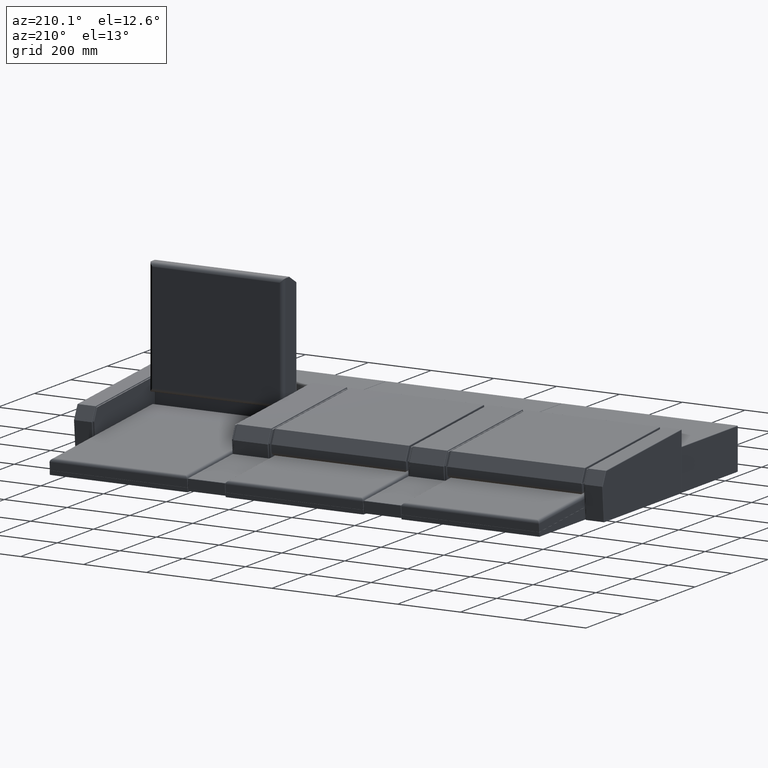
[diagram: clean part render]
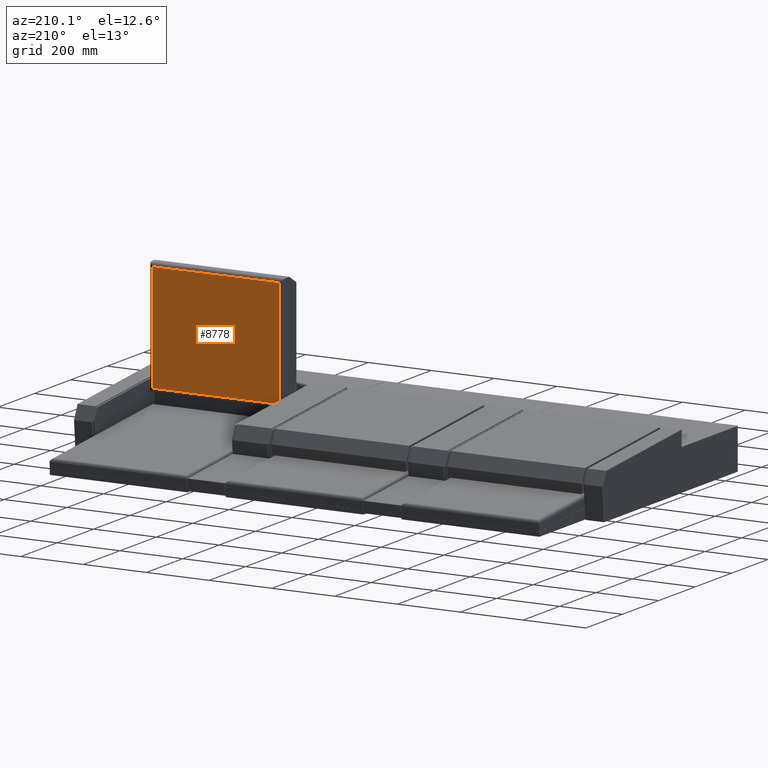
[diagram: same view with one face highlighted and labeled with its STEP entity id]
A machine part, auxiliary view. The second image highlights one B-rep face of the part: STEP entity #8778.
In plain terms, the highlighted planar face has unit normal (0, -1, 0).
Its self-contained STEP definition (entity closure, byte-faithful):
#1013 = EDGE_LOOP ( 'NONE', ( #1346, #1345, #1344, #1343 ) ) ;
#1343 = ORIENTED_EDGE ( 'NONE', *, *, #6661, .T. ) ;
#1344 = ORIENTED_EDGE ( 'NONE', *, *, #6662, .T. ) ;
#1345 = ORIENTED_EDGE ( 'NONE', *, *, #6663, .T. ) ;
#1346 = ORIENTED_EDGE ( 'NONE', *, *, #6664, .T. ) ;
#4143 = PLANE ( 'NONE',  #4567 ) ;
#4144 = CARTESIAN_POINT ( 'NONE',  ( 214.5000000000000000, 50.99999999999996400, 348.0000000000000000 ) ) ;
#4145 = DIRECTION ( 'NONE',  ( 0.0000000000000000000, -1.000000000000000000, 0.0000000000000000000 ) ) ;
#4146 = DIRECTION ( 'NONE',  ( 0.0000000000000000000, -0.0000000000000000000, -1.000000000000000000 ) ) ;
#4567 = AXIS2_PLACEMENT_3D ( 'NONE', #4144, #4145, #4146 ) ;
#5936 = FACE_OUTER_BOUND ( 'NONE', #1013, .T. ) ;
#6661 = EDGE_CURVE ( 'NONE', #9783, #9748, #10535, .T. ) ;
#6662 = EDGE_CURVE ( 'NONE', #9935, #9783, #10534, .T. ) ;
#6663 = EDGE_CURVE ( 'NONE', #9759, #9935, #10539, .T. ) ;
#6664 = EDGE_CURVE ( 'NONE', #9748, #9759, #10541, .T. ) ;
#7968 = CARTESIAN_POINT ( 'NONE',  ( -202.4999999999999700, 50.99999999999996400, 335.9999999999999400 ) ) ;
#7979 = CARTESIAN_POINT ( 'NONE',  ( 202.4999999999999700, 50.99999999999996400, 335.9999999999999400 ) ) ;
#8003 = CARTESIAN_POINT ( 'NONE',  ( -202.4999999999999700, 50.99999999999996400, -7.000000000000006200 ) ) ;
#8150 = CARTESIAN_POINT ( 'NONE',  ( 202.4999999999999700, 50.99999999999996400, -7.000000000000006200 ) ) ;
#8778 = ADVANCED_FACE ( 'NONE', ( #5936 ), #4143, .F. ) ;
#8990 = CARTESIAN_POINT ( 'NONE',  ( 214.5000000000000000, 50.99999999999996400, -7.000000000000006200 ) ) ;
#8992 = CARTESIAN_POINT ( 'NONE',  ( -202.4999999999999700, 50.99999999999996400, 348.0000000000000000 ) ) ;
#8993 = DIRECTION ( 'NONE',  ( 0.0000000000000000000, 0.0000000000000000000, 1.000000000000000000 ) ) ;
#8994 = DIRECTION ( 'NONE',  ( -1.000000000000000000, 0.0000000000000000000, 0.0000000000000000000 ) ) ;
#8995 = CARTESIAN_POINT ( 'NONE',  ( 202.4999999999999700, 50.99999999999996400, -19.00000000000001800 ) ) ;
#8996 = DIRECTION ( 'NONE',  ( -0.0000000000000000000, -0.0000000000000000000, -1.000000000000000000 ) ) ;
#8997 = CARTESIAN_POINT ( 'NONE',  ( 214.5000000000000000, 50.99999999999996400, 335.9999999999999400 ) ) ;
#8998 = DIRECTION ( 'NONE',  ( 1.000000000000000000, -0.0000000000000000000, -0.0000000000000000000 ) ) ;
#9748 = VERTEX_POINT ( 'NONE', #7968 ) ;
#9759 = VERTEX_POINT ( 'NONE', #7979 ) ;
#9783 = VERTEX_POINT ( 'NONE', #8003 ) ;
#9935 = VERTEX_POINT ( 'NONE', #8150 ) ;
#10534 = LINE ( 'NONE', #8990, #10540 ) ;
#10535 = LINE ( 'NONE', #8992, #10538 ) ;
#10538 = VECTOR ( 'NONE', #8993, 1000.000000000000000 ) ;
#10539 = LINE ( 'NONE', #8995, #10542 ) ;
#10540 = VECTOR ( 'NONE', #8994, 1000.000000000000000 ) ;
#10541 = LINE ( 'NONE', #8997, #10544 ) ;
#10542 = VECTOR ( 'NONE', #8996, 1000.000000000000000 ) ;
#10544 = VECTOR ( 'NONE', #8998, 1000.000000000000000 ) ;